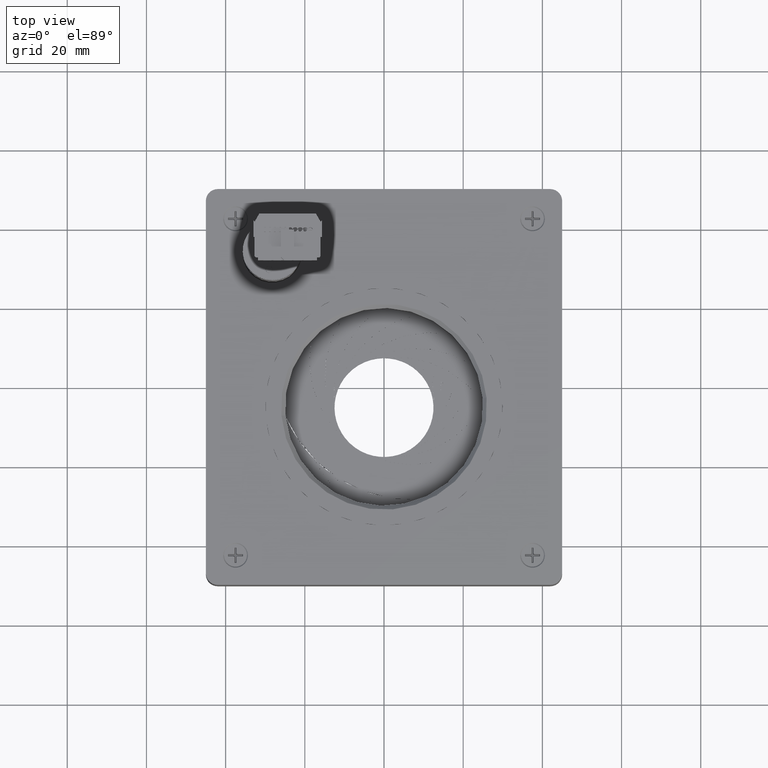
[diagram: clean part render]
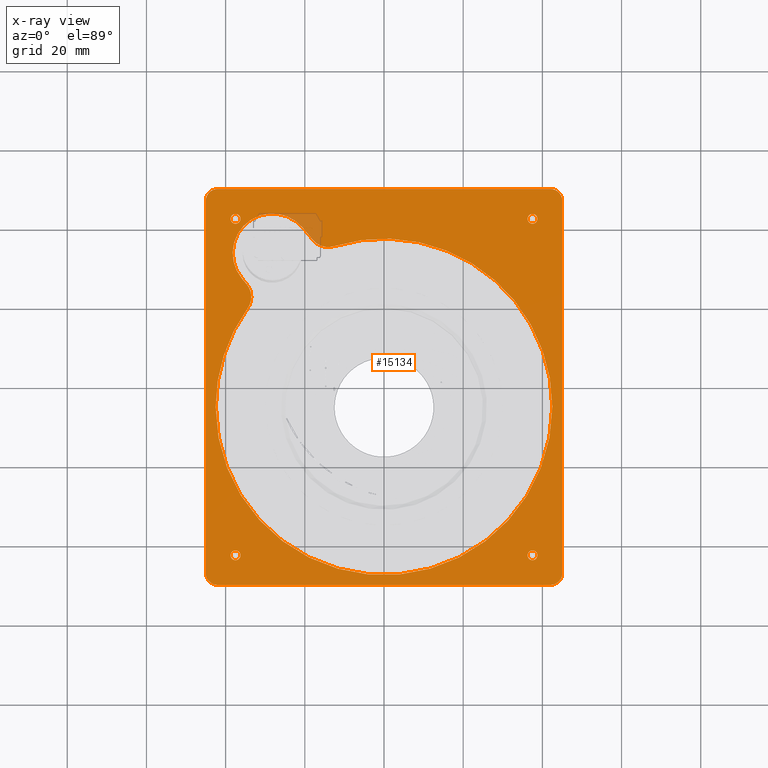
[diagram: x-ray — body ghosted, one internal face saturated and labeled with its STEP entity id]
A machine part, top view, then the same camera in x-ray: the body is ghosted and one INTERNAL B-rep face — a face not visible from any outside direction — is saturated and labeled: STEP entity #15134.
In plain terms, the highlighted planar face has unit normal (-0, -0, -1).
Its self-contained STEP definition (entity closure, byte-faithful):
#911 = CARTESIAN_POINT ( 'NONE',  ( -38.74999999999975100, 42.50000000000008500, 6.120337712803839600E-015 ) ) ;
#1241 = VERTEX_POINT ( 'NONE', #2494 ) ;
#1347 = EDGE_CURVE ( 'NONE', #15424, #33530, #32422, .T. ) ;
#1405 = EDGE_CURVE ( 'NONE', #33530, #15424, #2883, .T. ) ;
#2110 = VERTEX_POINT ( 'NONE', #31241 ) ;
#2309 = CARTESIAN_POINT ( 'NONE',  ( -38.74999999999975100, -42.50000000000008500, 6.120337712803839600E-015 ) ) ;
#2455 = CIRCLE ( 'NONE', #2947, 1.249999999999987100 ) ;
#2490 = ORIENTED_EDGE ( 'NONE', *, *, #15743, .F. ) ;
#2494 = CARTESIAN_POINT ( 'NONE',  ( 36.25000000000024900, -42.50000000000007800, -3.011501889351294200E-015 ) ) ;
#2650 = CARTESIAN_POINT ( 'NONE',  ( 6.964914756046879700E-015, -4.999999999999999100, -8.576037574054245900E-031 ) ) ;
#2883 = CIRCLE ( 'NONE', #13972, 1.249999999999987100 ) ;
#2947 = AXIS2_PLACEMENT_3D ( 'NONE', #24261, #44992, #20481 ) ;
#2978 = AXIS2_PLACEMENT_3D ( 'NONE', #33297, #45658, #50000 ) ;
#3039 = CIRCLE ( 'NONE', #17519, 4.999999999999999100 ) ;
#3062 = CARTESIAN_POINT ( 'NONE',  ( -41.99999999999995700, -50.00000000000000000, 5.113830177206860900E-015 ) ) ;
#3203 = ORIENTED_EDGE ( 'NONE', *, *, #18792, .F. ) ;
#3374 = DIRECTION ( 'NONE',  ( 1.217578613620690800E-016, 1.777403111722734700E-033, 1.000000000000000000 ) ) ;
#3378 = VERTEX_POINT ( 'NONE', #3062 ) ;
#3435 = CIRCLE ( 'NONE', #15779, 3.000000000000002700 ) ;
#3586 = ORIENTED_EDGE ( 'NONE', *, *, #42147, .T. ) ;
#3615 = DIRECTION ( 'NONE',  ( 1.217578613620690800E-016, 1.777403111722734700E-033, 1.000000000000000000 ) ) ;
#3760 = FACE_OUTER_BOUND ( 'NONE', #32672, .T. ) ;
#3850 = DIRECTION ( 'NONE',  ( -1.217578613620684100E-016, -1.777403111722731300E-033, -1.000000000000000000 ) ) ;
#4246 = CARTESIAN_POINT ( 'NONE',  ( 42.50000000000002100, -4.999999999999999100, -5.174709107887938700E-015 ) ) ;
#4518 = CIRCLE ( 'NONE', #2978, 1.249999999999987100 ) ;
#5034 = CIRCLE ( 'NONE', #21385, 3.000000000000002700 ) ;
#5220 = ORIENTED_EDGE ( 'NONE', *, *, #20767, .T. ) ;
#5314 = CARTESIAN_POINT ( 'NONE',  ( -44.99999999999998600, -47.00000000000000000, 5.479103761293081400E-015 ) ) ;
#5862 = VERTEX_POINT ( 'NONE', #26059 ) ;
#5954 = DIRECTION ( 'NONE',  ( 1.217578613620690800E-016, 1.777403111722734700E-033, 1.000000000000000000 ) ) ;
#5972 = CARTESIAN_POINT ( 'NONE',  ( 45.00000000000001400, -47.00000000000000000, -5.479103761293084600E-015 ) ) ;
#5974 = CARTESIAN_POINT ( 'NONE',  ( 37.50000000000023400, 42.50000000000007800, -3.163699216053879400E-015 ) ) ;
#6270 = VECTOR ( 'NONE', #9433, 1000.000000000000100 ) ;
#6754 = DIRECTION ( 'NONE',  ( 1.000000000000000000, 0.0000000000000000000, -1.217578613620684100E-016 ) ) ;
#7101 = DIRECTION ( 'NONE',  ( 1.000000000000000000, 0.0000000000000000000, -1.217578613620684900E-016 ) ) ;
#7127 = EDGE_CURVE ( 'NONE', #35329, #40809, #37030, .T. ) ;
#7264 = DIRECTION ( 'NONE',  ( -1.000000000000000000, -5.204170427930421300E-018, 1.217578613620684100E-016 ) ) ;
#7317 = CARTESIAN_POINT ( 'NONE',  ( -37.49999999999976600, -42.50000000000008500, 5.968140386101255300E-015 ) ) ;
#7467 = DIRECTION ( 'NONE',  ( 1.000000000000000000, 0.0000000000000000000, -1.217578613620684100E-016 ) ) ;
#7977 = ORIENTED_EDGE ( 'NONE', *, *, #15475, .F. ) ;
#8414 = CIRCLE ( 'NONE', #41379, 42.50000000000001400 ) ;
#8465 = DIRECTION ( 'NONE',  ( 1.000000000000000000, 0.0000000000000000000, -1.217578613620684900E-016 ) ) ;
#8481 = EDGE_CURVE ( 'NONE', #1241, #26146, #27347, .T. ) ;
#9003 = CIRCLE ( 'NONE', #16450, 1.249999999999987100 ) ;
#9083 = CARTESIAN_POINT ( 'NONE',  ( -35.89370751246709500, 27.42833578089433300, 4.370341063073603000E-015 ) ) ;
#9202 = EDGE_LOOP ( 'NONE', ( #34782, #31652 ) ) ;
#9433 = DIRECTION ( 'NONE',  ( 0.6404479949103100100, -0.7680015402428328500, -7.797957817390409000E-017 ) ) ;
#10183 = EDGE_LOOP ( 'NONE', ( #41638, #3586, #41941, #2490, #12769, #7977, #5220, #26915, #11434 ) ) ;
#10465 = LINE ( 'NONE', #47455, #14311 ) ;
#11235 = EDGE_CURVE ( 'NONE', #33809, #18626, #24202, .T. ) ;
#11434 = ORIENTED_EDGE ( 'NONE', *, *, #7127, .F. ) ;
#11580 = CARTESIAN_POINT ( 'NONE',  ( -12.63339006950788800, 35.57890406789790200, 1.538214556616072300E-015 ) ) ;
#11889 = EDGE_CURVE ( 'NONE', #32433, #35329, #34327, .T. ) ;
#12769 = ORIENTED_EDGE ( 'NONE', *, *, #49536, .F. ) ;
#12988 = EDGE_LOOP ( 'NONE', ( #37213, #3203 ) ) ;
#13972 = AXIS2_PLACEMENT_3D ( 'NONE', #7317, #52734, #15616 ) ;
#14311 = VECTOR ( 'NONE', #35258, 1000.000000000000000 ) ;
#14588 = ORIENTED_EDGE ( 'NONE', *, *, #34071, .F. ) ;
#15134 = ADVANCED_FACE ( 'NONE', ( #26239, #48731, #33906, #49345, #3760, #47425 ), #31843, .F. ) ;
#15334 = EDGE_CURVE ( 'NONE', #2110, #34215, #5034, .T. ) ;
#15424 = VERTEX_POINT ( 'NONE', #41875 ) ;
#15475 = EDGE_CURVE ( 'NONE', #28750, #21693, #25579, .T. ) ;
#15616 = DIRECTION ( 'NONE',  ( 1.000000000000000000, 0.0000000000000000000, -1.217578613620681900E-016 ) ) ;
#15743 = EDGE_CURVE ( 'NONE', #25829, #18626, #17239, .T. ) ;
#15754 = DIRECTION ( 'NONE',  ( -1.000000000000000000, -1.387778780781445900E-015, 1.217578613620684600E-016 ) ) ;
#15779 = AXIS2_PLACEMENT_3D ( 'NONE', #48887, #24331, #44701 ) ;
#15937 = DIRECTION ( 'NONE',  ( 1.217578613620690800E-016, 1.777403111722734700E-033, 1.000000000000000000 ) ) ;
#16034 = LINE ( 'NONE', #30548, #47467 ) ;
#16450 = AXIS2_PLACEMENT_3D ( 'NONE', #21823, #50493, #17521 ) ;
#16848 = VECTOR ( 'NONE', #34467, 1000.000000000000000 ) ;
#17029 = DIRECTION ( 'NONE',  ( 1.217578613620690800E-016, 1.777403111722734700E-033, 1.000000000000000000 ) ) ;
#17239 = LINE ( 'NONE', #9083, #6270 ) ;
#17469 = DIRECTION ( 'NONE',  ( 1.217578613620690800E-016, 1.777403111722734700E-033, 1.000000000000000000 ) ) ;
#17475 = EDGE_CURVE ( 'NONE', #40809, #17999, #8414, .T. ) ;
#17519 = AXIS2_PLACEMENT_3D ( 'NONE', #36209, #15937, #15754 ) ;
#17521 = DIRECTION ( 'NONE',  ( 1.000000000000000000, 0.0000000000000000000, -1.217578613620681900E-016 ) ) ;
#17999 = VERTEX_POINT ( 'NONE', #11580 ) ;
#18040 = CIRCLE ( 'NONE', #31033, 3.000000000000002700 ) ;
#18206 = CARTESIAN_POINT ( 'NONE',  ( -38.52870368098749800, 22.78109055927540500, 4.691172561249882700E-015 ) ) ;
#18478 = ORIENTED_EDGE ( 'NONE', *, *, #1405, .F. ) ;
#18626 = VERTEX_POINT ( 'NONE', #50068 ) ;
#18792 = EDGE_CURVE ( 'NONE', #5862, #39707, #35941, .T. ) ;
#18948 = ORIENTED_EDGE ( 'NONE', *, *, #28785, .T. ) ;
#19374 = CARTESIAN_POINT ( 'NONE',  ( -28.21369211003875700, 33.83281572999743500, 3.435238812446181500E-015 ) ) ;
#19524 = EDGE_CURVE ( 'NONE', #44190, #3378, #16034, .T. ) ;
#19942 = CARTESIAN_POINT ( 'NONE',  ( 38.75000000000022000, 42.50000000000007800, -3.315896542756463300E-015 ) ) ;
#20064 = CARTESIAN_POINT ( 'NONE',  ( -44.99999999999995700, -50.00000000000000000, 5.479103761293067200E-015 ) ) ;
#20220 = AXIS2_PLACEMENT_3D ( 'NONE', #18206, #5954, #23574 ) ;
#20481 = DIRECTION ( 'NONE',  ( 1.000000000000000000, 0.0000000000000000000, -1.217578613620684900E-016 ) ) ;
#20586 = AXIS2_PLACEMENT_3D ( 'NONE', #40673, #32237, #36542 ) ;
#20713 = EDGE_CURVE ( 'NONE', #37768, #42326, #34475, .T. ) ;
#20767 = EDGE_CURVE ( 'NONE', #28750, #17999, #3039, .T. ) ;
#21353 = DIRECTION ( 'NONE',  ( 1.217578613620690800E-016, 1.777403111722734700E-033, 1.000000000000000000 ) ) ;
#21385 = AXIS2_PLACEMENT_3D ( 'NONE', #25395, #33941, #30175 ) ;
#21522 = DIRECTION ( 'NONE',  ( -6.418476861114186200E-017, -1.000000000000000000, 5.900873730102757100E-033 ) ) ;
#21579 = CARTESIAN_POINT ( 'NONE',  ( -36.24999999999977300, 42.50000000000008500, 5.815943059398671700E-015 ) ) ;
#21693 = VERTEX_POINT ( 'NONE', #44835 ) ;
#21823 = CARTESIAN_POINT ( 'NONE',  ( -37.49999999999976600, 42.50000000000008500, 5.968140386101255300E-015 ) ) ;
#23449 = ORIENTED_EDGE ( 'NONE', *, *, #50219, .T. ) ;
#23485 = EDGE_CURVE ( 'NONE', #24141, #36979, #37377, .T. ) ;
#23516 = AXIS2_PLACEMENT_3D ( 'NONE', #45852, #21353, #25456 ) ;
#23534 = DIRECTION ( 'NONE',  ( 1.000000000000000000, 0.0000000000000000000, -1.217578613620681900E-016 ) ) ;
#23574 = DIRECTION ( 'NONE',  ( -1.000000000000000000, 0.0000000000000000000, 1.217578613620685300E-016 ) ) ;
#23703 = CARTESIAN_POINT ( 'NONE',  ( -37.49999999999976600, -42.50000000000008500, 5.968140386101255300E-015 ) ) ;
#24078 = ORIENTED_EDGE ( 'NONE', *, *, #15334, .T. ) ;
#24120 = CARTESIAN_POINT ( 'NONE',  ( 6.964914756046879700E-015, -4.999999999999999100, -8.576037574054245900E-031 ) ) ;
#24141 = VERTEX_POINT ( 'NONE', #911 ) ;
#24202 = CIRCLE ( 'NONE', #20220, 4.999999999999997300 ) ;
#24261 = CARTESIAN_POINT ( 'NONE',  ( 37.50000000000023400, 42.50000000000007800, -3.163699216053879400E-015 ) ) ;
#24331 = DIRECTION ( 'NONE',  ( 1.217578613620690800E-016, 1.777403111722734700E-033, 1.000000000000000000 ) ) ;
#24743 = VERTEX_POINT ( 'NONE', #5314 ) ;
#25395 = CARTESIAN_POINT ( 'NONE',  ( -41.99999999999997200, 47.00000000000000000, 5.113830177206873600E-015 ) ) ;
#25456 = DIRECTION ( 'NONE',  ( 1.000000000000000000, 0.0000000000000000000, -1.217578613620681900E-016 ) ) ;
#25547 = EDGE_LOOP ( 'NONE', ( #39695, #46254 ) ) ;
#25568 = AXIS2_PLACEMENT_3D ( 'NONE', #29796, #17469, #50290 ) ;
#25579 = LINE ( 'NONE', #30704, #40944 ) ;
#25829 = VERTEX_POINT ( 'NONE', #38085 ) ;
#26059 = CARTESIAN_POINT ( 'NONE',  ( 36.25000000000024900, 42.50000000000007800, -3.011501889351294200E-015 ) ) ;
#26137 = EDGE_CURVE ( 'NONE', #39707, #5862, #2455, .T. ) ;
#26146 = VERTEX_POINT ( 'NONE', #48630 ) ;
#26239 = FACE_BOUND ( 'NONE', #12988, .T. ) ;
#26915 = ORIENTED_EDGE ( 'NONE', *, *, #17475, .F. ) ;
#27347 = CIRCLE ( 'NONE', #51665, 1.249999999999987100 ) ;
#27571 = EDGE_LOOP ( 'NONE', ( #29381, #18478 ) ) ;
#28750 = VERTEX_POINT ( 'NONE', #35620 ) ;
#28785 = EDGE_CURVE ( 'NONE', #24743, #3378, #3435, .T. ) ;
#29381 = ORIENTED_EDGE ( 'NONE', *, *, #1347, .F. ) ;
#29796 = CARTESIAN_POINT ( 'NONE',  ( 6.964914756046879700E-015, -4.999999999999999100, -8.576037574054245900E-031 ) ) ;
#30175 = DIRECTION ( 'NONE',  ( -1.000000000000000000, 2.312964634635740700E-015, 1.217578613620682600E-016 ) ) ;
#30548 = CARTESIAN_POINT ( 'NONE',  ( 45.00000000000001400, -50.00000000000000000, -5.479103761293084600E-015 ) ) ;
#30704 = CARTESIAN_POINT ( 'NONE',  ( -20.53367670761042200, 40.23729567910053400, 2.500136561818759700E-015 ) ) ;
#30902 = DIRECTION ( 'NONE',  ( -1.000000000000000000, -5.204170427930421300E-018, 1.217578613620684100E-016 ) ) ;
#30911 = LINE ( 'NONE', #34644, #16848 ) ;
#31033 = AXIS2_PLACEMENT_3D ( 'NONE', #32526, #52640, #48890 ) ;
#31034 = ORIENTED_EDGE ( 'NONE', *, *, #19524, .F. ) ;
#31241 = CARTESIAN_POINT ( 'NONE',  ( -41.99999999999995000, 50.00000000000000000, 5.113830177206860200E-015 ) ) ;
#31247 = ORIENTED_EDGE ( 'NONE', *, *, #20713, .T. ) ;
#31337 = DIRECTION ( 'NONE',  ( 1.217578613620690800E-016, 1.777403111722734700E-033, 1.000000000000000000 ) ) ;
#31652 = ORIENTED_EDGE ( 'NONE', *, *, #23485, .F. ) ;
#31843 = PLANE ( 'NONE',  #34029 ) ;
#32237 = DIRECTION ( 'NONE',  ( 1.217578613620690800E-016, 1.777403111722734700E-033, 1.000000000000000000 ) ) ;
#32422 = CIRCLE ( 'NONE', #45930, 1.249999999999987100 ) ;
#32433 = VERTEX_POINT ( 'NONE', #33518 ) ;
#32526 = CARTESIAN_POINT ( 'NONE',  ( 42.00000000000000700, -47.00000000000000000, -5.113830177206868000E-015 ) ) ;
#32672 = EDGE_LOOP ( 'NONE', ( #44145, #18948, #31034, #23449, #14588, #31247, #38129, #24078 ) ) ;
#32734 = CARTESIAN_POINT ( 'NONE',  ( 45.00000000000002100, 47.00000000000000000, -5.479103761293075100E-015 ) ) ;
#33215 = CARTESIAN_POINT ( 'NONE',  ( 37.50000000000023400, -42.50000000000007800, -3.163699216053879400E-015 ) ) ;
#33297 = CARTESIAN_POINT ( 'NONE',  ( 37.50000000000023400, -42.50000000000007800, -3.163699216053879400E-015 ) ) ;
#33518 = CARTESIAN_POINT ( 'NONE',  ( -34.47305066193618500, 19.85676523724642100, 4.197364923223587700E-015 ) ) ;
#33530 = VERTEX_POINT ( 'NONE', #2309 ) ;
#33728 = CARTESIAN_POINT ( 'NONE',  ( 42.00000000000000700, -50.00000000000000000, -5.113830177206868000E-015 ) ) ;
#33809 = VERTEX_POINT ( 'NONE', #44963 ) ;
#33811 = CARTESIAN_POINT ( 'NONE',  ( 45.00000000000002100, 50.00000000000000000, -5.479103761293075100E-015 ) ) ;
#33906 = FACE_BOUND ( 'NONE', #25547, .T. ) ;
#33941 = DIRECTION ( 'NONE',  ( 1.217578613620690800E-016, 1.777403111722734700E-033, 1.000000000000000000 ) ) ;
#34029 = AXIS2_PLACEMENT_3D ( 'NONE', #20064, #3850, #7264 ) ;
#34071 = EDGE_CURVE ( 'NONE', #37768, #38031, #50395, .T. ) ;
#34215 = VERTEX_POINT ( 'NONE', #43150 ) ;
#34327 = CIRCLE ( 'NONE', #46632, 42.50000000000001400 ) ;
#34467 = DIRECTION ( 'NONE',  ( 1.335737076502141500E-016, 1.000000000000000000, -1.434952254968314100E-032 ) ) ;
#34475 = CIRCLE ( 'NONE', #20586, 3.000000000000002700 ) ;
#34644 = CARTESIAN_POINT ( 'NONE',  ( -44.99999999999997200, 50.00000000000000000, 5.479103761293068800E-015 ) ) ;
#34782 = ORIENTED_EDGE ( 'NONE', *, *, #37932, .F. ) ;
#34803 = AXIS2_PLACEMENT_3D ( 'NONE', #34979, #46626, #39113 ) ;
#34979 = CARTESIAN_POINT ( 'NONE',  ( -38.52870368098749800, 22.78109055927540500, 4.691172561249882700E-015 ) ) ;
#35258 = DIRECTION ( 'NONE',  ( 1.000000000000000000, 5.204170427930421300E-018, -1.217578613620684100E-016 ) ) ;
#35329 = VERTEX_POINT ( 'NONE', #37040 ) ;
#35620 = CARTESIAN_POINT ( 'NONE',  ( -17.95967895537003800, 37.15065280721668700, 2.186732100355203500E-015 ) ) ;
#35941 = CIRCLE ( 'NONE', #42460, 1.249999999999987100 ) ;
#36209 = CARTESIAN_POINT ( 'NONE',  ( -14.11967125415587200, 40.35289278176823300, 1.719180975041492800E-015 ) ) ;
#36542 = DIRECTION ( 'NONE',  ( -1.000000000000000000, 0.0000000000000000000, 1.217578613620682600E-016 ) ) ;
#36979 = VERTEX_POINT ( 'NONE', #21579 ) ;
#37030 = CIRCLE ( 'NONE', #25568, 42.50000000000001400 ) ;
#37040 = CARTESIAN_POINT ( 'NONE',  ( -42.50000000000000700, -4.999999999999993800, 5.174709107887937100E-015 ) ) ;
#37213 = ORIENTED_EDGE ( 'NONE', *, *, #26137, .F. ) ;
#37377 = CIRCLE ( 'NONE', #23516, 1.249999999999987100 ) ;
#37768 = VERTEX_POINT ( 'NONE', #32734 ) ;
#37932 = EDGE_CURVE ( 'NONE', #36979, #24141, #9003, .T. ) ;
#38031 = VERTEX_POINT ( 'NONE', #5972 ) ;
#38085 = CARTESIAN_POINT ( 'NONE',  ( -35.89370751246709500, 27.42833578089433300, 4.370341063073603000E-015 ) ) ;
#38129 = ORIENTED_EDGE ( 'NONE', *, *, #51794, .F. ) ;
#39113 = DIRECTION ( 'NONE',  ( -1.000000000000000000, 5.551115123125785900E-015, 1.217578613620685300E-016 ) ) ;
#39370 = DIRECTION ( 'NONE',  ( -0.6404479949103094600, 0.7680015402428332900, 7.797957817390418800E-017 ) ) ;
#39695 = ORIENTED_EDGE ( 'NONE', *, *, #53172, .F. ) ;
#39707 = VERTEX_POINT ( 'NONE', #19942 ) ;
#40673 = CARTESIAN_POINT ( 'NONE',  ( 42.00000000000001400, 47.00000000000000000, -5.113830177206868800E-015 ) ) ;
#40809 = VERTEX_POINT ( 'NONE', #4246 ) ;
#40944 = VECTOR ( 'NONE', #39370, 1000.000000000000100 ) ;
#41298 = CIRCLE ( 'NONE', #34803, 4.999999999999997300 ) ;
#41379 = AXIS2_PLACEMENT_3D ( 'NONE', #24120, #3615, #44667 ) ;
#41638 = ORIENTED_EDGE ( 'NONE', *, *, #11889, .F. ) ;
#41875 = CARTESIAN_POINT ( 'NONE',  ( -36.24999999999977300, -42.50000000000008500, 5.815943059398671700E-015 ) ) ;
#41941 = ORIENTED_EDGE ( 'NONE', *, *, #11235, .T. ) ;
#42147 = EDGE_CURVE ( 'NONE', #32433, #33809, #41298, .T. ) ;
#42326 = VERTEX_POINT ( 'NONE', #45424 ) ;
#42460 = AXIS2_PLACEMENT_3D ( 'NONE', #5974, #17029, #7101 ) ;
#43150 = CARTESIAN_POINT ( 'NONE',  ( -44.99999999999997200, 47.00000000000000000, 5.479103761293068800E-015 ) ) ;
#44145 = ORIENTED_EDGE ( 'NONE', *, *, #52200, .F. ) ;
#44190 = VERTEX_POINT ( 'NONE', #33728 ) ;
#44667 = DIRECTION ( 'NONE',  ( 1.000000000000000000, 0.0000000000000000000, -1.217578613620684100E-016 ) ) ;
#44701 = DIRECTION ( 'NONE',  ( -1.000000000000000000, 0.0000000000000000000, 1.217578613620682600E-016 ) ) ;
#44835 = CARTESIAN_POINT ( 'NONE',  ( -20.53367670761042200, 40.23729567910053400, 2.500136561818759700E-015 ) ) ;
#44963 = CARTESIAN_POINT ( 'NONE',  ( -33.52870368098750500, 22.78109055927540500, 4.082383254439538100E-015 ) ) ;
#44992 = DIRECTION ( 'NONE',  ( 1.217578613620690800E-016, 1.777403111722734700E-033, 1.000000000000000000 ) ) ;
#45424 = CARTESIAN_POINT ( 'NONE',  ( 42.00000000000001400, 50.00000000000000000, -5.113830177206868800E-015 ) ) ;
#45658 = DIRECTION ( 'NONE',  ( 1.217578613620690800E-016, 1.777403111722734700E-033, 1.000000000000000000 ) ) ;
#45852 = CARTESIAN_POINT ( 'NONE',  ( -37.49999999999976600, 42.50000000000008500, 5.968140386101255300E-015 ) ) ;
#45930 = AXIS2_PLACEMENT_3D ( 'NONE', #23703, #52551, #23534 ) ;
#45933 = DIRECTION ( 'NONE',  ( 1.217578613620690800E-016, 1.777403111722734700E-033, 1.000000000000000000 ) ) ;
#46254 = ORIENTED_EDGE ( 'NONE', *, *, #8481, .F. ) ;
#46626 = DIRECTION ( 'NONE',  ( 1.217578613620690800E-016, 1.777403111722734700E-033, 1.000000000000000000 ) ) ;
#46632 = AXIS2_PLACEMENT_3D ( 'NONE', #2650, #31337, #6754 ) ;
#46829 = AXIS2_PLACEMENT_3D ( 'NONE', #19374, #3374, #7467 ) ;
#47425 = FACE_BOUND ( 'NONE', #9202, .T. ) ;
#47455 = CARTESIAN_POINT ( 'NONE',  ( 45.00000000000002100, 50.00000000000000000, -5.479103761293075100E-015 ) ) ;
#47467 = VECTOR ( 'NONE', #30902, 1000.000000000000000 ) ;
#48630 = CARTESIAN_POINT ( 'NONE',  ( 38.75000000000022000, -42.50000000000007800, -3.315896542756463300E-015 ) ) ;
#48731 = FACE_BOUND ( 'NONE', #27571, .T. ) ;
#48887 = CARTESIAN_POINT ( 'NONE',  ( -41.99999999999997900, -47.00000000000000000, 5.113830177206874400E-015 ) ) ;
#48890 = DIRECTION ( 'NONE',  ( -1.000000000000000000, 0.0000000000000000000, 1.217578613620682600E-016 ) ) ;
#49132 = VECTOR ( 'NONE', #21522, 1000.000000000000000 ) ;
#49345 = FACE_BOUND ( 'NONE', #10183, .T. ) ;
#49536 = EDGE_CURVE ( 'NONE', #21693, #25829, #50255, .T. ) ;
#50000 = DIRECTION ( 'NONE',  ( 1.000000000000000000, 0.0000000000000000000, -1.217578613620684900E-016 ) ) ;
#50068 = CARTESIAN_POINT ( 'NONE',  ( -34.68869597977333500, 25.98333053382695500, 4.223621435936182600E-015 ) ) ;
#50219 = EDGE_CURVE ( 'NONE', #44190, #38031, #18040, .T. ) ;
#50255 = CIRCLE ( 'NONE', #46829, 10.00000000000000500 ) ;
#50290 = DIRECTION ( 'NONE',  ( 1.000000000000000000, 0.0000000000000000000, -1.217578613620684100E-016 ) ) ;
#50395 = LINE ( 'NONE', #33811, #49132 ) ;
#50493 = DIRECTION ( 'NONE',  ( 1.217578613620690800E-016, 1.777403111722734700E-033, 1.000000000000000000 ) ) ;
#51665 = AXIS2_PLACEMENT_3D ( 'NONE', #33215, #45933, #8465 ) ;
#51794 = EDGE_CURVE ( 'NONE', #2110, #42326, #10465, .T. ) ;
#52200 = EDGE_CURVE ( 'NONE', #24743, #34215, #30911, .T. ) ;
#52551 = DIRECTION ( 'NONE',  ( 1.217578613620690800E-016, 1.777403111722734700E-033, 1.000000000000000000 ) ) ;
#52640 = DIRECTION ( 'NONE',  ( 1.217578613620690800E-016, 1.777403111722734700E-033, 1.000000000000000000 ) ) ;
#52734 = DIRECTION ( 'NONE',  ( 1.217578613620690800E-016, 1.777403111722734700E-033, 1.000000000000000000 ) ) ;
#53172 = EDGE_CURVE ( 'NONE', #26146, #1241, #4518, .T. ) ;